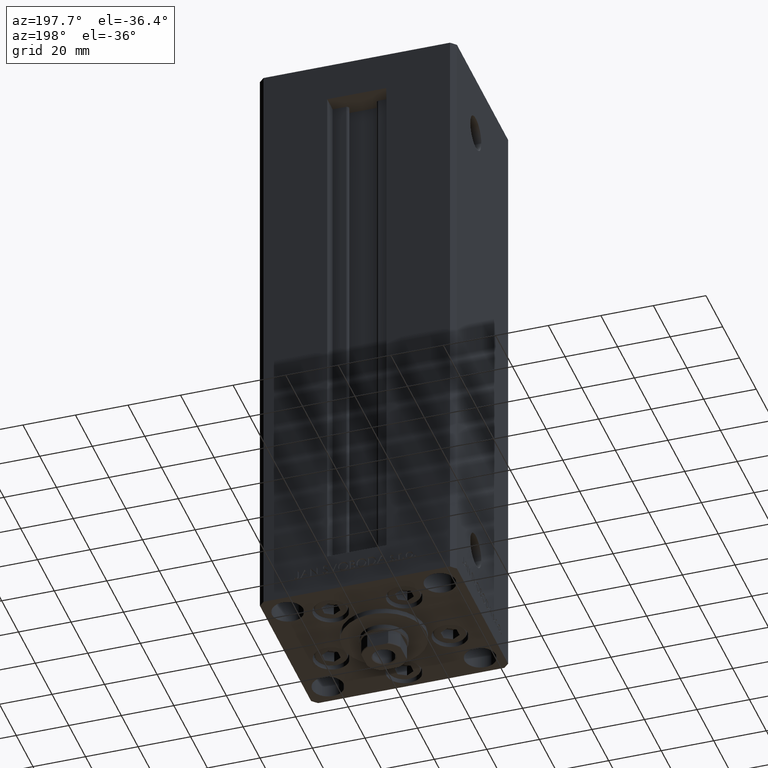
[diagram: clean part render]
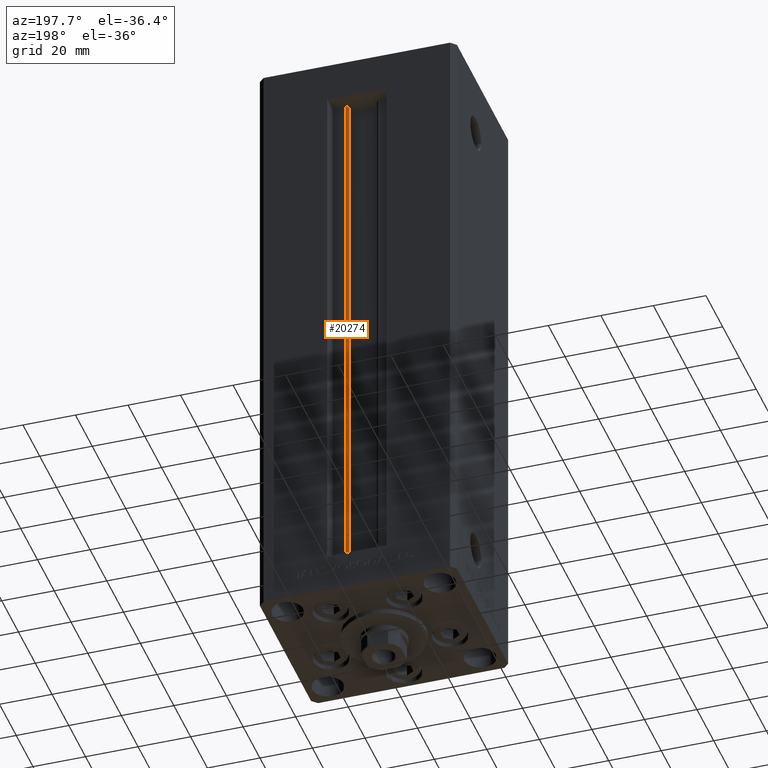
[diagram: same view with one face highlighted and labeled with its STEP entity id]
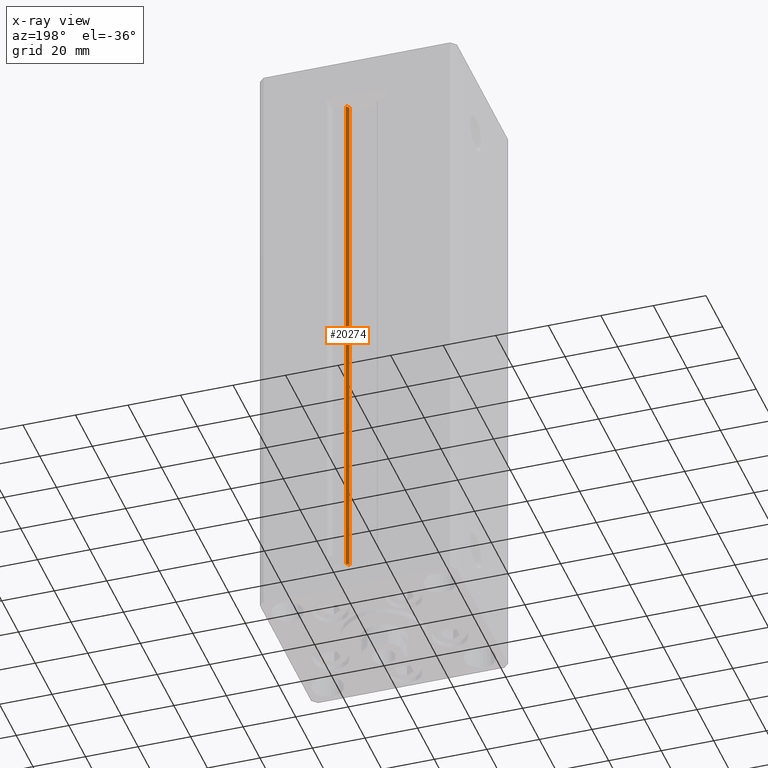
[diagram: x-ray of the same camera — body ghosted, the highlighted face saturated]
A machine part, auxiliary view. The second image highlights one B-rep face of the part: STEP entity #20274.
The next image is the same camera in x-ray: the body ghosted, the highlighted face saturated — about 0% of this face is hidden behind the body in this view.
In plain terms, the highlighted cylindrical surface (edge-blend (fillet) strip) has radius 0.9333 mm, axis along (0, 0, 1).
Its self-contained STEP definition (entity closure, byte-faithful):
#48 = EDGE_CURVE ( 'NONE', #46961, #25150, #2537, .T. ) ;
#1984 = DIRECTION ( 'NONE',  ( 0.000000000000000000, 0.000000000000000000, -1.000000000000000000 ) ) ;
#2411 = AXIS2_PLACEMENT_3D ( 'NONE', #25364, #1984, #43971 ) ;
#2537 = LINE ( 'NONE', #10079, #26970 ) ;
#3456 = AXIS2_PLACEMENT_3D ( 'NONE', #12586, #19891, #39256 ) ;
#5120 = EDGE_CURVE ( 'NONE', #46961, #26216, #6249, .T. ) ;
#6249 = CIRCLE ( 'NONE', #10265, 0.9333333333340008142 ) ;
#7898 = CARTESIAN_POINT ( 'NONE',  ( 5.375042956467947164, 24.59999999999899245, 0.000000000000000000 ) ) ;
#9333 = DIRECTION ( 'NONE',  ( -0.000000000000000000, -0.000000000000000000, 1.000000000000000000 ) ) ;
#10079 = CARTESIAN_POINT ( 'NONE',  ( 5.375042956467947164, 24.59999999999899245, 0.000000000000000000 ) ) ;
#10265 = AXIS2_PLACEMENT_3D ( 'NONE', #45736, #48504, #44735 ) ;
#10991 = EDGE_CURVE ( 'NONE', #25150, #17374, #21560, .T. ) ;
#11662 = CARTESIAN_POINT ( 'NONE',  ( 6.183333333334001480, 25.99999999999999289, 0.000000000000000000 ) ) ;
#12348 = CYLINDRICAL_SURFACE ( 'NONE', #3456, 0.9333333333340008142 ) ;
#12586 = CARTESIAN_POINT ( 'NONE',  ( 6.183333333334001480, 25.06666666666599141, 0.000000000000000000 ) ) ;
#16050 = CARTESIAN_POINT ( 'NONE',  ( 6.183333333334001480, 25.99999999999999289, 0.000000000000000000 ) ) ;
#17327 = VECTOR ( 'NONE', #31640, 1000.000000000000000 ) ;
#17374 = VERTEX_POINT ( 'NONE', #48185 ) ;
#19891 = DIRECTION ( 'NONE',  ( -0.000000000000000000, -0.000000000000000000, 1.000000000000000000 ) ) ;
#20274 = ADVANCED_FACE ( 'NONE', ( #47021 ), #12348, .T. ) ;
#21049 = EDGE_LOOP ( 'NONE', ( #27872, #32692, #46985, #36539 ) ) ;
#21560 = CIRCLE ( 'NONE', #2411, 0.9333333333340008142 ) ;
#21956 = CARTESIAN_POINT ( 'NONE',  ( 5.375042956467948052, 24.59999999999899245, 206.0000000000000000 ) ) ;
#25150 = VERTEX_POINT ( 'NONE', #21956 ) ;
#25364 = CARTESIAN_POINT ( 'NONE',  ( 6.183333333334001480, 25.06666666666599141, 206.0000000000000000 ) ) ;
#26216 = VERTEX_POINT ( 'NONE', #11662 ) ;
#26970 = VECTOR ( 'NONE', #9333, 1000.000000000000000 ) ;
#27872 = ORIENTED_EDGE ( 'NONE', *, *, #48474, .F. ) ;
#31640 = DIRECTION ( 'NONE',  ( -0.000000000000000000, -0.000000000000000000, 1.000000000000000000 ) ) ;
#32692 = ORIENTED_EDGE ( 'NONE', *, *, #5120, .F. ) ;
#36539 = ORIENTED_EDGE ( 'NONE', *, *, #10991, .T. ) ;
#39256 = DIRECTION ( 'NONE',  ( 1.000000000000000000, 0.000000000000000000, 0.000000000000000000 ) ) ;
#42465 = LINE ( 'NONE', #16050, #17327 ) ;
#43971 = DIRECTION ( 'NONE',  ( 1.000000000000000000, 0.000000000000000000, 0.000000000000000000 ) ) ;
#44735 = DIRECTION ( 'NONE',  ( 1.000000000000000000, 0.000000000000000000, 0.000000000000000000 ) ) ;
#45736 = CARTESIAN_POINT ( 'NONE',  ( 6.183333333334001480, 25.06666666666599141, 0.000000000000000000 ) ) ;
#46961 = VERTEX_POINT ( 'NONE', #7898 ) ;
#46985 = ORIENTED_EDGE ( 'NONE', *, *, #48, .T. ) ;
#47021 = FACE_OUTER_BOUND ( 'NONE', #21049, .T. ) ;
#48185 = CARTESIAN_POINT ( 'NONE',  ( 6.183333333334001480, 25.99999999999999289, 206.0000000000000000 ) ) ;
#48474 = EDGE_CURVE ( 'NONE', #26216, #17374, #42465, .T. ) ;
#48504 = DIRECTION ( 'NONE',  ( -0.000000000000000000, -0.000000000000000000, -1.000000000000000000 ) ) ;